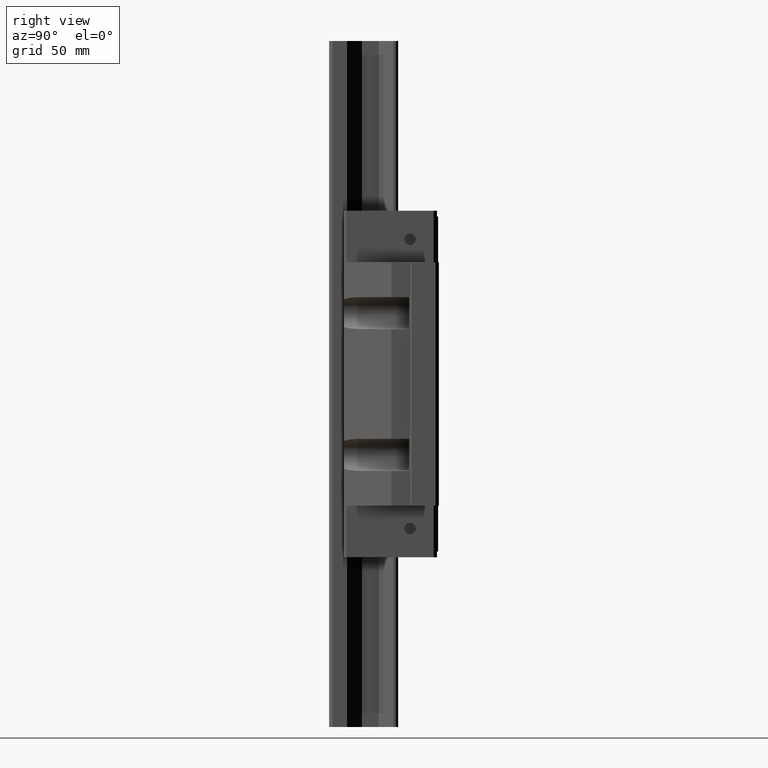
[diagram: clean part render]
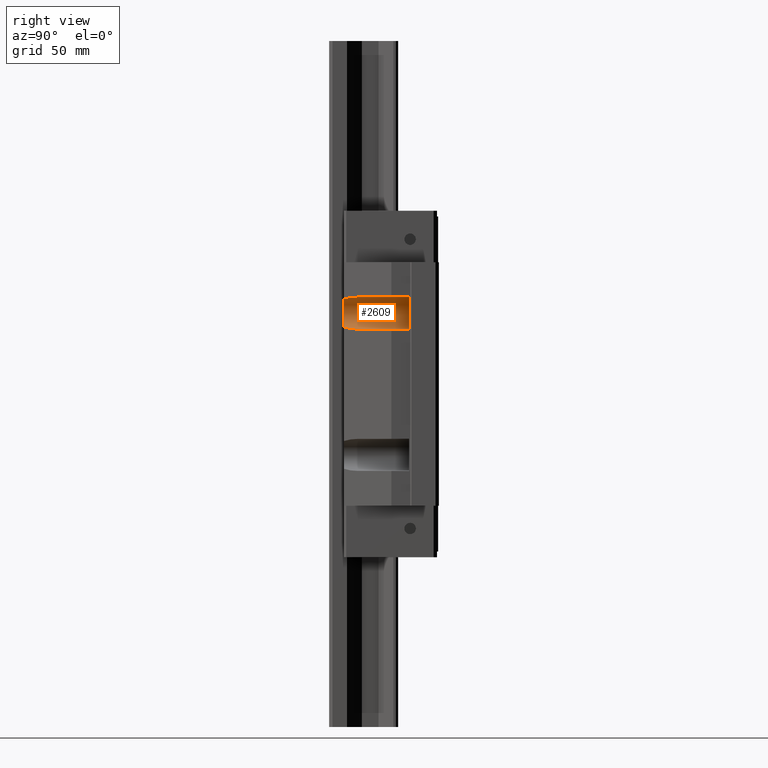
[diagram: same view with one face highlighted and labeled with its STEP entity id]
A machine part, right view. The second image highlights one B-rep face of the part: STEP entity #2609.
In plain terms, the highlighted cylindrical surface (edge-blend (fillet) strip) has radius 7 mm, axis along (0, -1, 0).
Its self-contained STEP definition (entity closure, byte-faithful):
#444=CARTESIAN_POINT('',(4.1E1,6.5E0,3.1E1));
#445=DIRECTION('',(0.E0,-1.E0,0.E0));
#446=DIRECTION('',(-4.944860456857E-1,0.E0,8.691855674263E-1));
#447=AXIS2_PLACEMENT_3D('',#444,#445,#446);
#507=CARTESIAN_POINT('',(4.1E1,3.5E1,3.1E1));
#508=DIRECTION('',(0.E0,1.E0,0.E0));
#509=DIRECTION('',(0.E0,0.E0,-1.E0));
#510=AXIS2_PLACEMENT_3D('',#507,#508,#509);
#534=CARTESIAN_POINT('',(3.753859768020E1,6.499999999997E0,3.708429897198E1));
#535=CARTESIAN_POINT('',(3.866884546562E1,8.457646589483E0,3.772730522865E1));
#536=CARTESIAN_POINT('',(3.982491518690E1,1.046001808383E1,3.8E1));
#537=CARTESIAN_POINT('',(4.1E1,1.249532468331E1,3.8E1));
#539=DIRECTION('',(1.010339728272E-14,1.E0,0.E0));
#540=VECTOR('',#539,2.250467531669E1);
#541=CARTESIAN_POINT('',(4.1E1,1.249532468331E1,3.8E1));
#542=LINE('',#541,#540);
#543=DIRECTION('',(-1.010339728272E-14,-1.E0,0.E0));
#544=VECTOR('',#543,2.250467531669E1);
#545=CARTESIAN_POINT('',(4.1E1,3.5E1,2.4E1));
#546=LINE('',#545,#544);
#547=CARTESIAN_POINT('',(4.1E1,1.249532468331E1,2.4E1));
#548=CARTESIAN_POINT('',(3.982491518690E1,1.046001808383E1,2.4E1));
#549=CARTESIAN_POINT('',(3.866884546562E1,8.457646589482E0,2.427269477135E1));
#550=CARTESIAN_POINT('',(3.753859768020E1,6.499999999997E0,2.491570102802E1));
#1757=CARTESIAN_POINT('',(4.1E1,3.5E1,2.4E1));
#1758=VERTEX_POINT('',#1757);
#1759=CARTESIAN_POINT('',(4.1E1,3.5E1,3.8E1));
#1760=VERTEX_POINT('',#1759);
#1781=CARTESIAN_POINT('',(4.1E1,1.249532468331E1,3.8E1));
#1782=VERTEX_POINT('',#1781);
#1790=CARTESIAN_POINT('',(3.753859768020E1,6.5E0,2.491570102802E1));
#1791=VERTEX_POINT('',#1790);
#1792=VERTEX_POINT('',#547);
#1793=VERTEX_POINT('',#534);
#2594=CARTESIAN_POINT('',(4.1E1,6.5E0,3.1E1));
#2595=DIRECTION('',(0.E0,-1.E0,0.E0));
#2596=DIRECTION('',(0.E0,0.E0,-1.E0));
#2597=AXIS2_PLACEMENT_3D('',#2594,#2595,#2596);
#2598=CYLINDRICAL_SURFACE('',#2597,7.E0);
#2599=ORIENTED_EDGE('',*,*,#2474,.F.);
#2601=ORIENTED_EDGE('',*,*,#2600,.T.);
#2603=ORIENTED_EDGE('',*,*,#2602,.T.);
#2604=ORIENTED_EDGE('',*,*,#2568,.F.);
#2605=ORIENTED_EDGE('',*,*,#2587,.T.);
#2606=ORIENTED_EDGE('',*,*,#2509,.T.);
#2607=EDGE_LOOP('',(#2599,#2601,#2603,#2604,#2605,#2606));
#2608=FACE_OUTER_BOUND('',#2607,.F.);
#2609=ADVANCED_FACE('',(#2608),#2598,.F.);
#448=CIRCLE('',#447,7.E0);
#511=CIRCLE('',#510,7.E0);
#538=B_SPLINE_CURVE_WITH_KNOTS('',3,(#534,#535,#536,#537),.UNSPECIFIED.,.F.,.F.,
(4,4),(0.E0,1.E0),.UNSPECIFIED.);
#551=B_SPLINE_CURVE_WITH_KNOTS('',3,(#547,#548,#549,#550),.UNSPECIFIED.,.F.,.F.,
(4,4),(0.E0,1.E0),.UNSPECIFIED.);
#2474=EDGE_CURVE('',#1793,#1791,#448,.T.);
#2509=EDGE_CURVE('',#1792,#1791,#551,.T.);
#2568=EDGE_CURVE('',#1758,#1760,#511,.T.);
#2587=EDGE_CURVE('',#1758,#1792,#546,.T.);
#2600=EDGE_CURVE('',#1793,#1782,#538,.T.);
#2602=EDGE_CURVE('',#1782,#1760,#542,.T.);